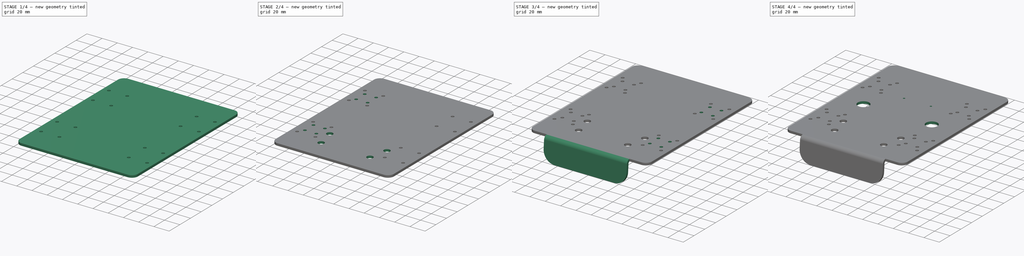
[diagram: build sequence overview — one tinted view per stage of 4, left to right]
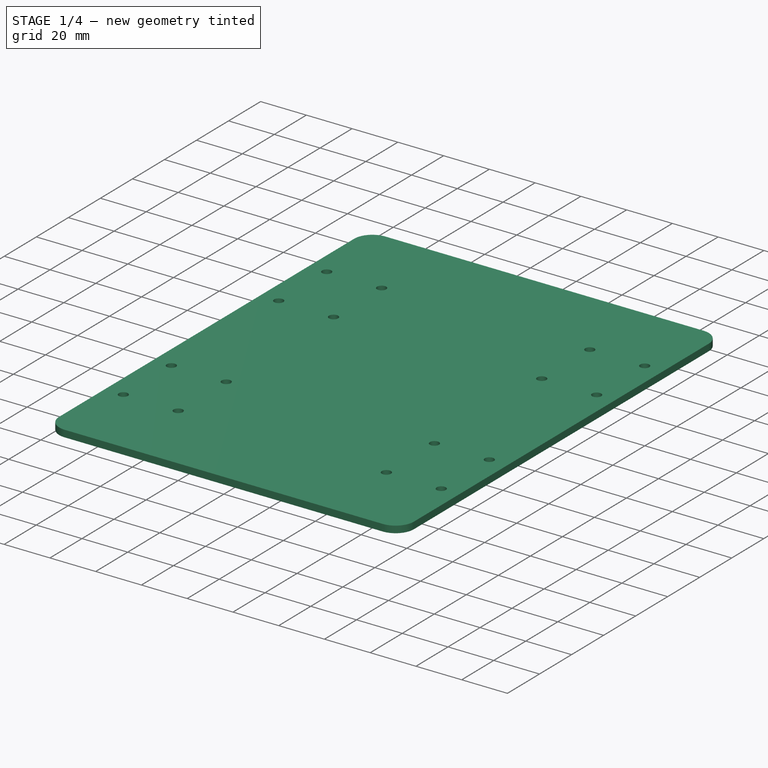
[diagram: stage 1 of 4 — iso view after this stage's code; geometry added in this stage tinted green]
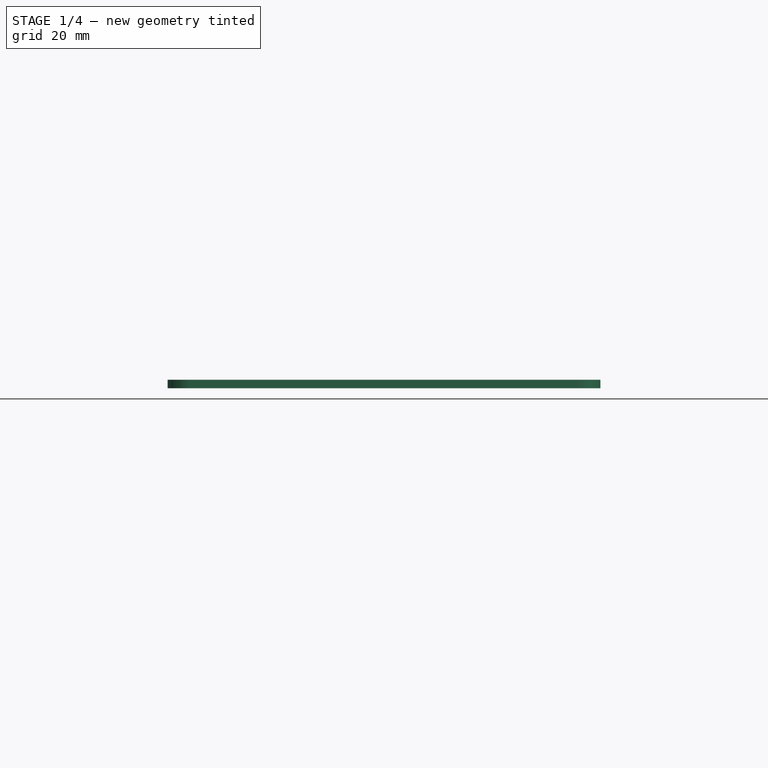
[diagram: stage 1 of 4 — front view after this stage's code; geometry added in this stage tinted green]
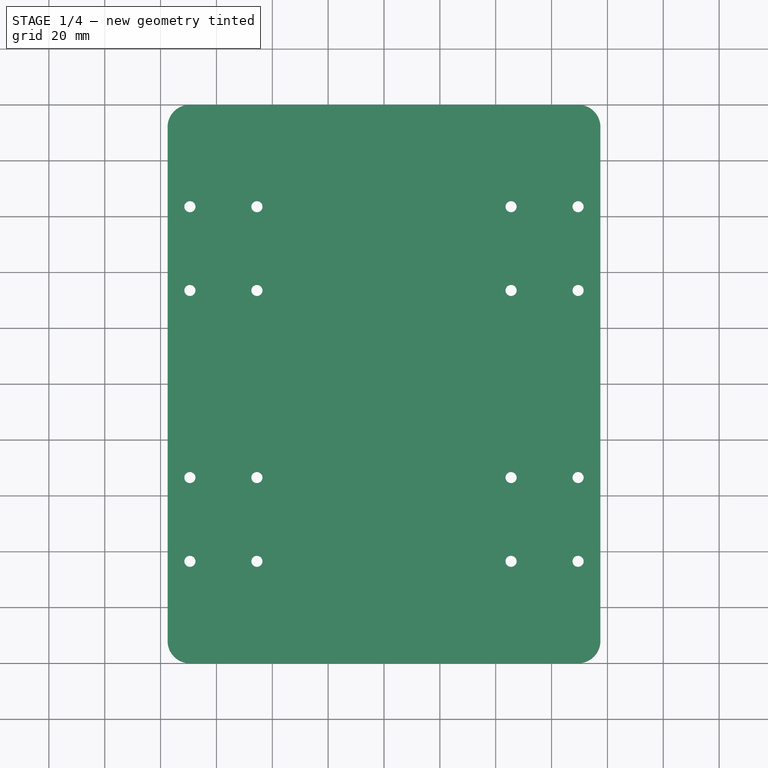
[diagram: stage 1 of 4 — top view after this stage's code; geometry added in this stage tinted green]
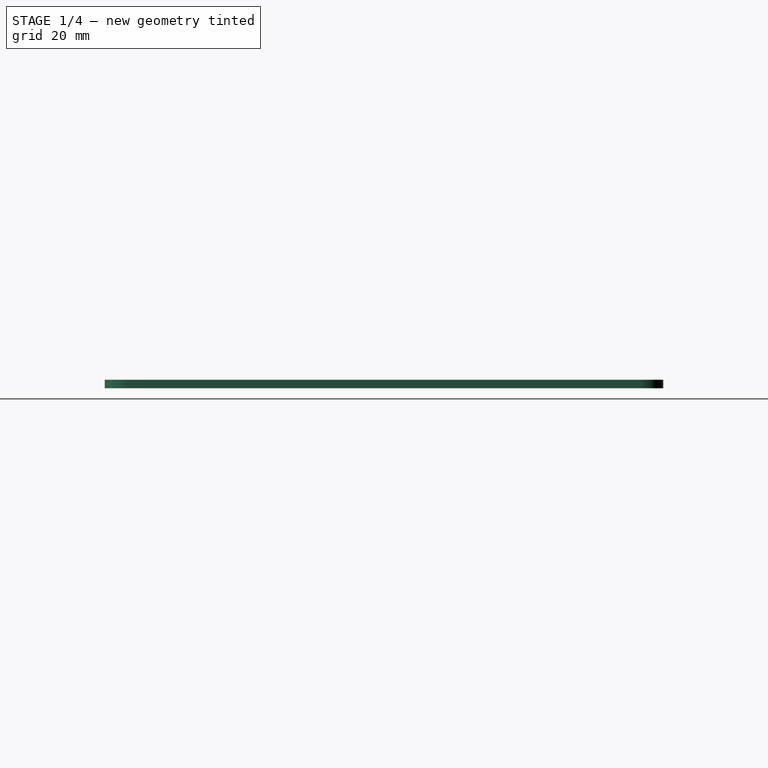
[diagram: stage 1 of 4 — right view after this stage's code; geometry added in this stage tinted green]
FCSTD DOCUMENT  (FreeCAD 0.21R33771 (Git))
Label: BigOleYellowChassisPlate
License: All rights reserved
LicenseURL: http://en.wikipedia.org/wiki/All_rights_reserved
objects: Sketcher::SketchObject×7, PartDesign::Pocket×5, Part::Feature×2, PartDesign::Pad×2, App::Part×1, Spreadsheet::Sheet×1, Part::FeaturePython×1, App::FeaturePython×1, App::AnnotationLabel×1, App::DocumentObjectGroup×1, PartDesign::Mirrored×1, PartDesign::ShapeBinder×1, PartDesign::Fillet×1, PartDesign::Body×1
note: 29 computed .brp shape members not serialized (recipe doc carries the construction recipe); baked Part::Feature solids carry a one-line shape summary decoded from their .brp

FEATURE [Part::Feature] Part__Feature088  label="ImportedChassis"
  Placement = pos=(0,0,0) rot=(1,0,0;1.5708rad)
  shape: bbox 154 x 200 x 3 mm, 158 faces (baked)
FEATURE [Part::Feature] Part__Feature089  label="ChassisFront"
  Placement = pos=(0,0,0) rot=(1,0,0;1.5708rad)
  shape: bbox 109 x 8 x 30.45 mm, 10 faces (baked)
FEATURE [App::Part] ChassisBody_v26  label="ChassisBody"
  Group = -> [Part__Feature088,Part__Feature089]
  Origin = -> Origin017
  Placement = pos=(6.4e-14,1,-2.49e-14) rot=(1,0,0;0rad)
FEATURE [Sketcher::SketchObject] Sketch032
  FullyConstrained = true
  MapMode = 5
  Support = -> [XY_Plane057]
  expr: Constraints[26] = <<ChassisPlateSheet>>.corner_radius
  expr: Constraints[5] = <<ChassisPlateSheet>>.width
  expr: Constraints[6] = <<ChassisPlateSheet>>.length
  sketch-geometry (12):
    g0: LineSegment StartX=-69.5 StartY=100 StartZ=0 EndX=69.5 EndY=100 EndZ=0
    g1: LineSegment StartX=77.5 StartY=92 StartZ=0 EndX=77.5 EndY=-92 EndZ=0
    g2: LineSegment StartX=69.5 StartY=-100 StartZ=0 EndX=-69.5 EndY=-100 EndZ=0
    g3: LineSegment StartX=-77.5 StartY=-92 StartZ=0 EndX=-77.5 EndY=92 EndZ=0
    g4: ArcOfCircle CenterX=-69.5 CenterY=92 CenterZ=0 NormalX=0 NormalY=0 NormalZ=1 AngleXU=0 Radius=8 StartAngle=1.5708 EndAngle=3.14159
    g5: GeomPoint X=-77.5 Y=100 Z=0
    g6: ArcOfCircle CenterX=69.5 CenterY=92 CenterZ=0 NormalX=0 NormalY=0 NormalZ=1 AngleXU=0 Radius=8 StartAngle=5.01e-14 EndAngle=1.5708
    g7: GeomPoint X=77.5 Y=100 Z=0
    g8: ArcOfCircle CenterX=69.5 CenterY=-92 CenterZ=0 NormalX=0 NormalY=0 NormalZ=1 AngleXU=0 Radius=8 StartAngle=4.71239 EndAngle=6.28319
    g9: GeomPoint X=77.5 Y=-100 Z=0
    g10: ArcOfCircle CenterX=-69.5 CenterY=-92 CenterZ=0 NormalX=0 NormalY=0 NormalZ=1 AngleXU=0 Radius=8 StartAngle=3.14159 EndAngle=4.71239
    g11: GeomPoint X=-77.5 Y=-100 Z=0
  constraints (27):
    c: Horizontal(g0)
    c: Horizontal(g2)
    c: Vertical(g1)
    c: Vertical(g3)
    c: Symmetric(g9,g5,g-1)
    c: DistanceX(g5,g7) = 155
    c: DistanceY(g9,g7) = 200
    c: PointOnObject(g5,g3)
    c: PointOnObject(g5,g0)
    c: Tangent(g3,g4) = 1.5708
    c: Tangent(g0,g4) = 1.5708
    c: PointOnObject(g7,g0)
    c: PointOnObject(g7,g1)
    c: Tangent(g0,g6) = 1.5708
    c: Tangent(g1,g6) = 1.5708
    c: PointOnObject(g9,g1)
    c: PointOnObject(g9,g2)
    c: Tangent(g1,g8) = 1.5708
    c: Tangent(g2,g8) = 1.5708
    c: PointOnObject(g11,g2)
    c: PointOnObject(g11,g3)
    c: Tangent(g2,g10) = 1.5708
    c: Tangent(g3,g10) = 1.5708
    c: Equal(g10,g8)
    c: Equal(g8,g6)
    c: Equal(g6,g4)
    c: Radius(g4) = 8
FEATURE [Spreadsheet::Sheet] Spreadsheet001  label="ChassisPlateSheet"
  cells = A1='width; B1(width)==155 mm; D1='front_bracket_height; E1(front_bracket_height)==30 mm; H1='Outer Holes; K1='Inner Holes; A2='length; B2(length)==200 mm; D2='front_bracket_width; E2(front_bracket_width)==108 mm; H2='outer_hole_to_edge; I2(outer_hole_to_edge)==8 mm; K2='inner_hole_to_edge; L2(inner_hole_to_edge)==13 mm; A3='thickness; B3(thickness)==3 mm; H3='outer_hole_diameter; I3(outer_hole_diameter)==4 mm; K3='inner_hole_diameter; L3(inner_hole_diameter)==4 mm; A4='corner_radius; B4(corner_radius)==8 mm; H4='outer_hole_from_rear; I4(outer_hole_from_rear)==36.5 mm; K4='inner_hole_from_rear; L4(inner_hole_from_rear)==44 mm; H5='outer_hole_from_front; I5(outer_hole_from_front)==36.5 mm; K5='inner_hole_from_front; L5(inner_hole_from_front)==44 mm; H6='outer_hole_dist_fb; I6(outer_hole_dist_fb)==30 mm; K6='inner_hole_dist_fb; L6(inner_hole_dist_fb)==16 mm; H7='outer_hole_dist_w; I7(outer_hole_dist_w)==24 mm; K7='inner_hole_dist_w; L7(inner_hole_dist_w)==15 mm; A9='Peg Holes; D9='Mid Side Holes; H9='Diamond Holes; A10='peg_hole_diameter; B10(peg_hole_diameter)==8 mm; D10='mid_side_hole_diameter; E10(mid_side_hole_diameter)==15 mm; H10='diamond_front_pair_dist; I10(diamond_front_pair_dist)==20.5 mm; A11='peg_hole_to_front; B11(peg_hole_to_front)==24 mm + 4 mm; D11='mid_side_hole_edge_tangent; E11(mid_side_hole_edge_tangent)==25.5 mm; H11='diamond_small_diam; I11(diamond_small_diam)==2.5 mm; A12='front_peg_hole_distance; B12(front_peg_hole_distance)==56 mm + 8 mm; D12='mid_side_hole_rear_tangent; E12(mid_side_hole_rear_tangent)==93 mm; H12='diamond_outer_pair_dist; I12(diamond_outer_pair_dist)==35 mm; A13='front_peg_hole_to_rear_holes; B13(front_peg_hole_to_rear_holes)==24 mm; H13='diamond_inner_pair_dist; I13(diamond_inner_pair_dist)==6.5 mm; A14='rear_peg_hole_distance; B14(rear_peg_hole_distance)==67 mm + 8 mm; H14='diamond_outer_to_rear; I14(diamond_outer_to_rear)==63.5 mm
FEATURE [PartDesign::Pad] Pad014  label="ChassisPlatePad"
  Direction = (0,0,1)
  Length = 3
  Length2 = 10
  Profile = -> Sketch032
  ReferenceAxis = -> Sketch032 [N_Axis]
  Type = 0
  expr: Length = <<ChassisPlateSheet>>.thickness
FEATURE [Sketcher::SketchObject] Sketch
  ExternalGeometry = -> [Pad014]
  FullyConstrained = true
  MapMode = 5
  Placement = pos=(0,0,3) rot=(0,0,1;0rad)
  Support = -> [Pad014]
  expr: Constraints[16] = <<ChassisPlateSheet>>.outer_hole_from_front
  expr: Constraints[17] = <<ChassisPlateSheet>>.outer_hole_dist_fb
  expr: Constraints[18] = <<ChassisPlateSheet>>.outer_hole_diameter
  expr: Constraints[19] = <<ChassisPlateSheet>>.outer_hole_dist_w
  expr: Constraints[20] = <<ChassisPlateSheet>>.outer_hole_to_edge
  expr: Constraints[21] = <<ChassisPlateSheet>>.outer_hole_from_rear
  expr: Constraints[22] = <<ChassisPlateSheet>>.outer_hole_dist_fb
  sketch-geometry (16):
    g0: Circle CenterX=-69.5 CenterY=63.5 CenterZ=0 NormalX=0 NormalY=0 NormalZ=1 AngleXU=0 Radius=2
    g1: Circle CenterX=-69.5 CenterY=33.5 CenterZ=0 NormalX=0 NormalY=0 NormalZ=1 AngleXU=0 Radius=2
    g2: Circle CenterX=-45.5 CenterY=63.5 CenterZ=0 NormalX=0 NormalY=0 NormalZ=1 AngleXU=0 Radius=2
    g3: Circle CenterX=-45.5 CenterY=33.5 CenterZ=0 NormalX=0 NormalY=0 NormalZ=1 AngleXU=0 Radius=2
    g4: Circle CenterX=-69.5 CenterY=-33.5 CenterZ=0 NormalX=0 NormalY=0 NormalZ=1 AngleXU=0 Radius=2
    g5: Circle CenterX=-45.5 CenterY=-33.5 CenterZ=0 NormalX=0 NormalY=0 NormalZ=1 AngleXU=0 Radius=2
    g6: Circle CenterX=-69.5 CenterY=-63.5 CenterZ=0 NormalX=0 NormalY=0 NormalZ=1 AngleXU=0 Radius=2
    g7: Circle CenterX=-45.5 CenterY=-63.5 CenterZ=0 NormalX=0 NormalY=0 NormalZ=1 AngleXU=0 Radius=2
    g8: Circle CenterX=69.5 CenterY=63.5 CenterZ=0 NormalX=0 NormalY=0 NormalZ=1 AngleXU=0 Radius=2
    g9: Circle CenterX=69.5 CenterY=33.5 CenterZ=0 NormalX=0 NormalY=0 NormalZ=1 AngleXU=0 Radius=2
    g10: Circle CenterX=45.5 CenterY=63.5 CenterZ=0 NormalX=0 NormalY=0 NormalZ=1 AngleXU=0 Radius=2
    g11: Circle CenterX=45.5 CenterY=33.5 CenterZ=0 NormalX=0 NormalY=0 NormalZ=1 AngleXU=0 Radius=2
    g12: Circle CenterX=69.5 CenterY=-33.5 CenterZ=0 NormalX=0 NormalY=0 NormalZ=1 AngleXU=0 Radius=2
    g13: Circle CenterX=45.5 CenterY=-33.5 CenterZ=0 NormalX=0 NormalY=0 NormalZ=1 AngleXU=0 Radius=2
    g14: Circle CenterX=69.5 CenterY=-63.5 CenterZ=0 NormalX=0 NormalY=0 NormalZ=1 AngleXU=0 Radius=2
    g15: Circle CenterX=45.5 CenterY=-63.5 CenterZ=0 NormalX=0 NormalY=0 NormalZ=1 AngleXU=0 Radius=2
  constraints (40):
    c: Equal(g2,g3)
    c: Equal(g3,g1)
    c: Equal(g1,g0)
    c: Equal(g0,g4)
    c: Equal(g4,g5)
    c: Equal(g5,g6)
    c: Equal(g6,g7)
    c: Vertical(g2,g3)
    c: Vertical(g5,g7)
    c: Vertical(g4,g6)
    c: Vertical(g6,g1)
    c: Vertical(g1,g0)
    c: Horizontal(g0,g2)
    c: Horizontal(g1,g3)
    c: Horizontal(g4,g5)
    c: Horizontal(g6,g7)
    c: DistanceY(g-6,g7) = 36.5
    c: DistanceY(g7,g5) = 30
    c: Diameter(g6) = 4
    c: DistanceX(g6,g7) = 24
    c: DistanceX(g-3,g6) = 8
    c: DistanceY(g0,g-4) = 36.5
    c: DistanceY(g1,g0) = 30
    c: Vertical(g3,g5)
    c: Equal(g10,g11)
    c: Equal(g11,g9)
    c: Equal(g9,g8)
    c: Equal(g8,g12)
    c: Equal(g12,g13)
    c: Equal(g13,g14)
    c: Equal(g14,g15)
    c: Diameter(g14) = 4
    c: Symmetric(g15,g7,g-2)
    c: Symmetric(g5,g13,g-2)
    c: Symmetric(g12,g4,g-2)
    c: Symmetric(g6,g14,g-2)
    c: Symmetric(g0,g8,g-2)
    c: Symmetric(g10,g2,g-2)
    c: Symmetric(g1,g9,g-2)
    c: Symmetric(g11,g3,g-2)
FEATURE [PartDesign::Pocket] Pocket  label="OuterHolesPocket"
  BaseFeature = -> Pad014
  Direction = (0,0,-1)
  Length = 5
  Length2 = 5
  Profile = -> Sketch
  ReferenceAxis = -> Sketch [N_Axis]
  Type = 1
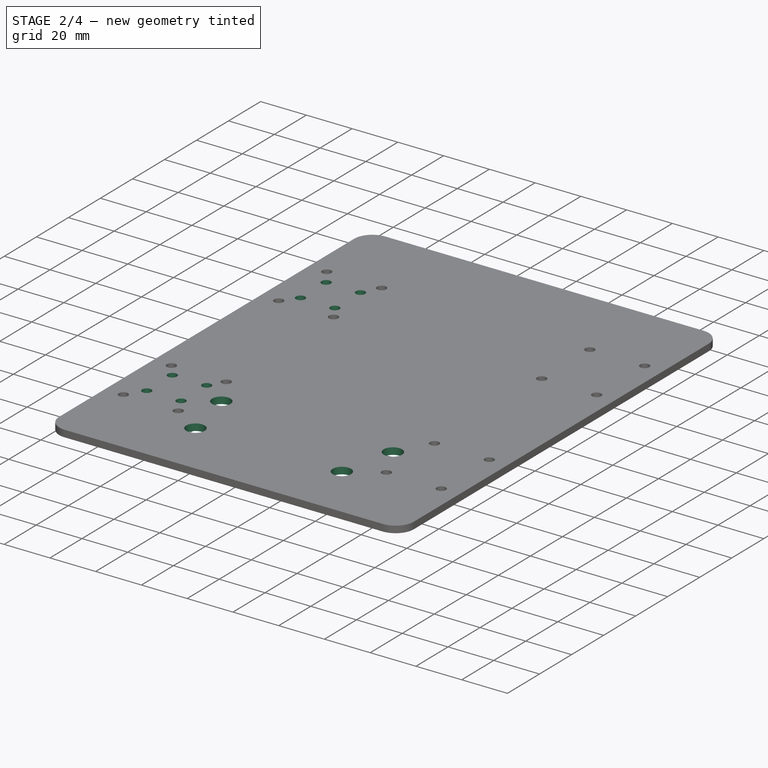
[diagram: stage 2 of 4 — iso view after this stage's code; geometry added in this stage tinted green]
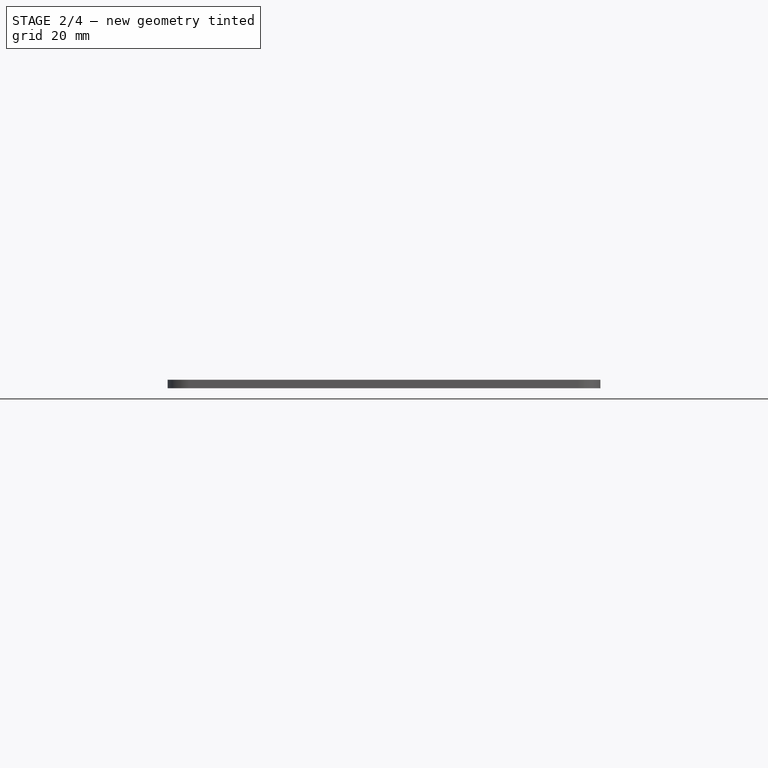
[diagram: stage 2 of 4 — front view after this stage's code; geometry added in this stage tinted green]
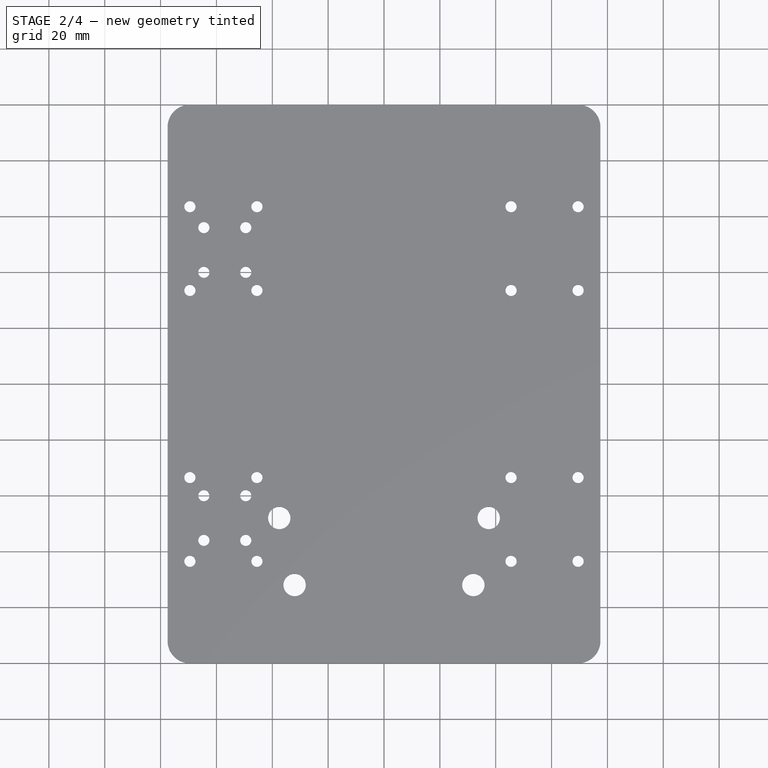
[diagram: stage 2 of 4 — top view after this stage's code; geometry added in this stage tinted green]
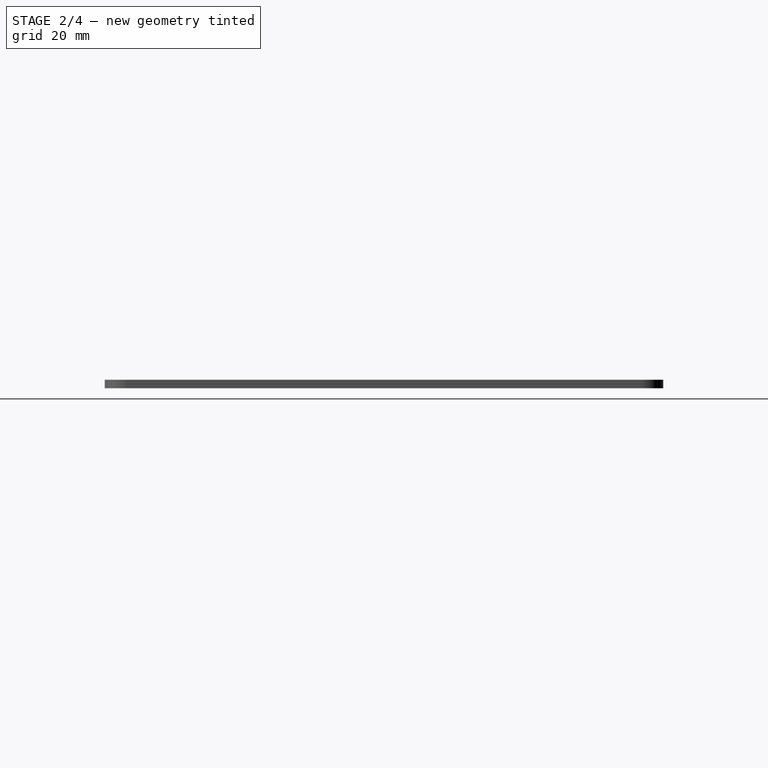
[diagram: stage 2 of 4 — right view after this stage's code; geometry added in this stage tinted green]
FEATURE [Part::FeaturePython] Point  label="Center"  # WARN: FeaturePython — macro-defined, semantics opaque (R4)
  Placement = pos=(114.5,53,3) rot=(0,0,1;0rad)
  X = 114.5
  Y = 53
  Z = 3
FEATURE [App::FeaturePython] Dimension  label="Radius"  # Draft dimension (typed FeaturePython)
  Diameter = false
  Dimline = (116.5,53,3)
  Direction = (0,0,0)
  Distance = 4
  End = (114.5,53,3)
  Normal = (0,0,1)
  Start = (118.5,53,3)
FEATURE [App::AnnotationLabel] RadiusLbl
  BasePosition = (116.5,53,3)
  LabelText = radi: 4.0 mm
  TextPosition = (0,0,0)
FEATURE [App::DocumentObjectGroup] Measurements
  Group = -> [Dimension,RadiusLbl]
FEATURE [Sketcher::SketchObject] Sketch033  label="PegHoleSketch"
  ExternalGeometry = -> [Pocket]
  FullyConstrained = true
  MapMode = 5
  Placement = pos=(0,0,3) rot=(0,0,1;0rad)
  Support = -> [Pocket]
  expr: Constraints[15] = <<ChassisPlateSheet>>.peg_hole_diameter
  expr: Constraints[16] = <<ChassisPlateSheet>>.rear_peg_hole_distance
  expr: Constraints[17] = Spreadsheet001.front_peg_hole_distance
  expr: Constraints[3] = <<ChassisPlateSheet>>.peg_hole_to_front
  expr: Constraints[7] = <<ChassisPlateSheet>>.front_peg_hole_to_rear_holes
  sketch-geometry (6):
    g0: LineSegment StartX=-77.5 StartY=-72 StartZ=0 EndX=77.5 EndY=-72 EndZ=0
    g1: LineSegment StartX=-77.5 StartY=-48 StartZ=0 EndX=77.5 EndY=-48 EndZ=0
    g2: Circle CenterX=-32 CenterY=-72 CenterZ=0 NormalX=0 NormalY=0 NormalZ=1 AngleXU=0 Radius=4
    g3: Circle CenterX=32 CenterY=-72 CenterZ=0 NormalX=0 NormalY=0 NormalZ=1 AngleXU=0 Radius=4
    g4: Circle CenterX=37.5 CenterY=-48 CenterZ=0 NormalX=0 NormalY=0 NormalZ=1 AngleXU=0 Radius=4
    g5: Circle CenterX=-37.5 CenterY=-48 CenterZ=0 NormalX=0 NormalY=0 NormalZ=1 AngleXU=0 Radius=4
  constraints (18):
    c: PointOnObject(g0,g-4)
    c: PointOnObject(g0,g-5)
    c: Horizontal(g0)
    c: DistanceY(g-3,g0) = 28
    c: PointOnObject(g1,g-4)
    c: Horizontal(g1)
    c: PointOnObject(g1,g-5)
    c: DistanceY(g0,g1) = 24
    c: PointOnObject(g2,g0)
    c: PointOnObject(g4,g1)
    c: Equal(g5,g4)
    c: Equal(g4,g3)
    c: Equal(g3,g2)
    c: Symmetric(g2,g3,g-2)
    c: Symmetric(g4,g5,g-2)
    c: Diameter(g4) = 8
    c: DistanceX(g5,g4) = 75
    c: DistanceX(g2,g3) = 64
FEATURE [PartDesign::Pocket] Pocket001  label="PegHoles"
  BaseFeature = -> Pocket
  Direction = (0,0,-1)
  Length = 5
  Length2 = 5
  Profile = -> Sketch033
  ReferenceAxis = -> Sketch033 [N_Axis]
  Type = 1
FEATURE [Sketcher::SketchObject] Sketch034  label="InnerHolesLeftSketch"
  ExternalGeometry = -> [Pocket001]
  FullyConstrained = true
  MapMode = 5
  Placement = pos=(0,0,3) rot=(0,0,1;0rad)
  Support = -> [Pocket001]
  expr: Constraints[17] = <<ChassisPlateSheet>>.inner_hole_diameter
  expr: Constraints[18] = <<ChassisPlateSheet>>.inner_hole_to_edge
  expr: Constraints[19] = <<ChassisPlateSheet>>.inner_hole_dist_w
  expr: Constraints[20] = <<ChassisPlateSheet>>.inner_hole_dist_fb
  expr: Constraints[21] = <<ChassisPlateSheet>>.inner_hole_from_front
  expr: Constraints[22] = <<ChassisPlateSheet>>.inner_hole_dist_fb
  expr: Constraints[23] = <<ChassisPlateSheet>>.inner_hole_from_rear
  sketch-geometry (8):
    g0: Circle CenterX=-64.5 CenterY=56 CenterZ=0 NormalX=0 NormalY=0 NormalZ=1 AngleXU=0 Radius=2
    g1: Circle CenterX=-49.5 CenterY=56 CenterZ=0 NormalX=0 NormalY=0 NormalZ=1 AngleXU=0 Radius=2
    g2: Circle CenterX=-64.5 CenterY=40 CenterZ=0 NormalX=0 NormalY=0 NormalZ=1 AngleXU=0 Radius=2
    g3: Circle CenterX=-49.5 CenterY=40 CenterZ=0 NormalX=0 NormalY=0 NormalZ=1 AngleXU=0 Radius=2
    g4: Circle CenterX=-64.5 CenterY=-40 CenterZ=0 NormalX=0 NormalY=0 NormalZ=1 AngleXU=0 Radius=2
    g5: Circle CenterX=-49.5 CenterY=-40 CenterZ=0 NormalX=0 NormalY=0 NormalZ=1 AngleXU=0 Radius=2
    g6: Circle CenterX=-64.5 CenterY=-56 CenterZ=0 NormalX=0 NormalY=0 NormalZ=1 AngleXU=0 Radius=2
    g7: Circle CenterX=-49.5 CenterY=-56 CenterZ=0 NormalX=0 NormalY=0 NormalZ=1 AngleXU=0 Radius=2
  constraints (24):
    c: Vertical(g4,g6)
    c: Vertical(g5,g7)
    c: Vertical(g3,g5)
    c: Vertical(g3,g1)
    c: Vertical(g0,g2)
    c: Vertical(g2,g4)
    c: Equal(g5,g4)
    c: Equal(g4,g6)
    c: Equal(g6,g7)
    c: Equal(g5,g3)
    c: Equal(g3,g2)
    c: Equal(g2,g0)
    c: Equal(g0,g1)
    c: Horizontal(g3,g2)
    c: Horizontal(g0,g1)
    c: Horizontal(g5,g4)
    c: Horizontal(g6,g7)
    c: Diameter(g7) = 4
    c: DistanceX(g-3,g4) = 13
    c: DistanceX(g4,g5) = 15
    c: DistanceY(g6,g4) = 16
    c: DistanceY(g-4,g6) = 44
    c: DistanceY(g2,g0) = 16
    c: DistanceY(g0,g-5) = 44
FEATURE [PartDesign::Pocket] Pocket002  label="InnerHolesLeft"
  BaseFeature = -> Pocket001
  Direction = (0,0,-1)
  Length = 5
  Length2 = 5
  Profile = -> Sketch034
  ReferenceAxis = -> Sketch034 [N_Axis]
  Type = 1
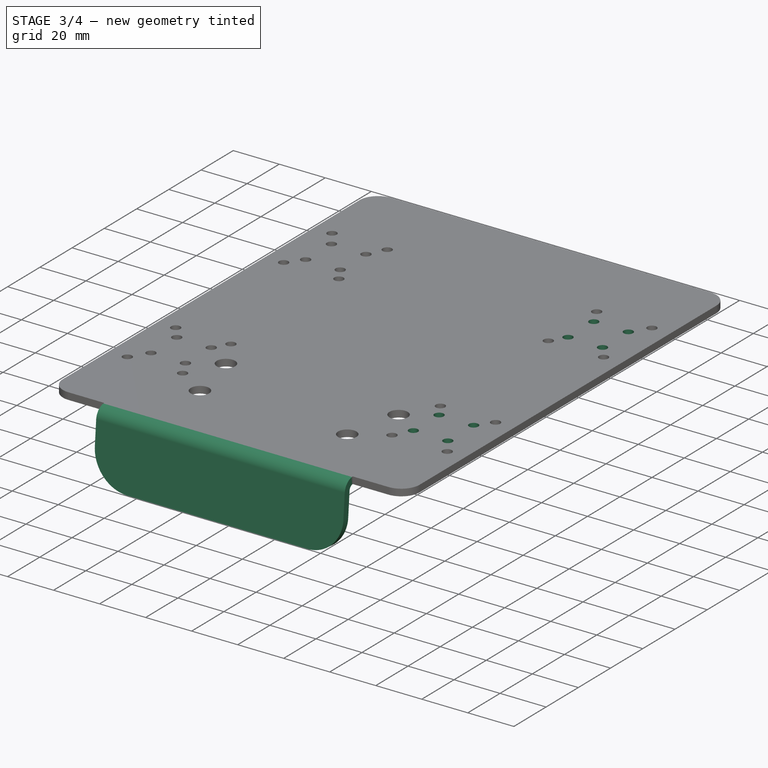
[diagram: stage 3 of 4 — iso view after this stage's code; geometry added in this stage tinted green]
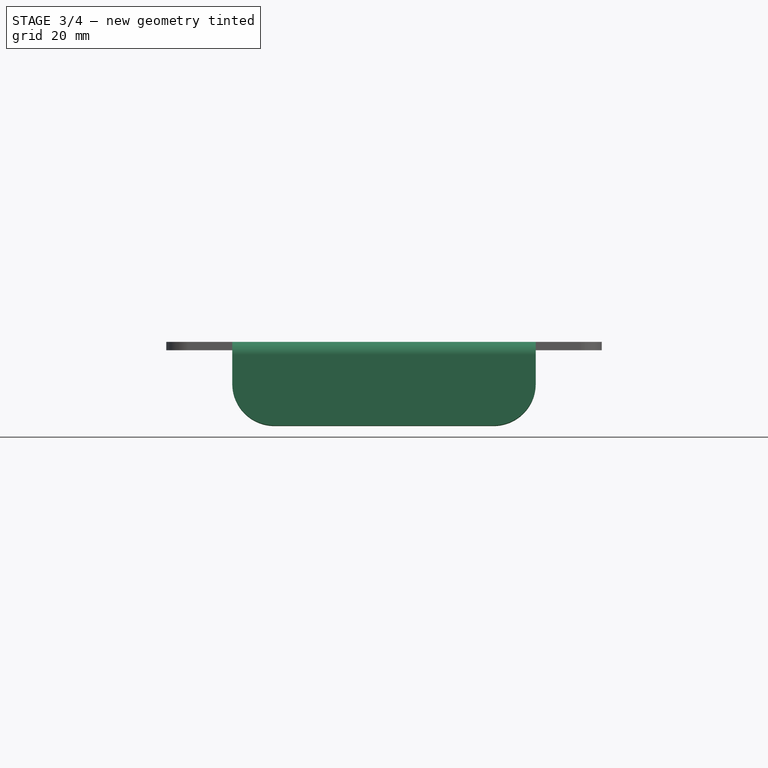
[diagram: stage 3 of 4 — front view after this stage's code; geometry added in this stage tinted green]
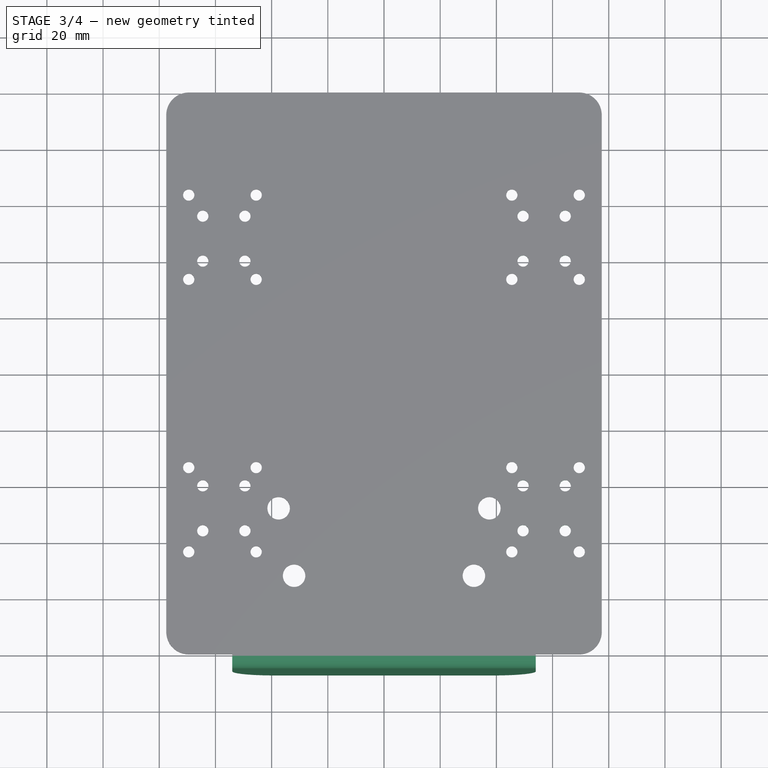
[diagram: stage 3 of 4 — top view after this stage's code; geometry added in this stage tinted green]
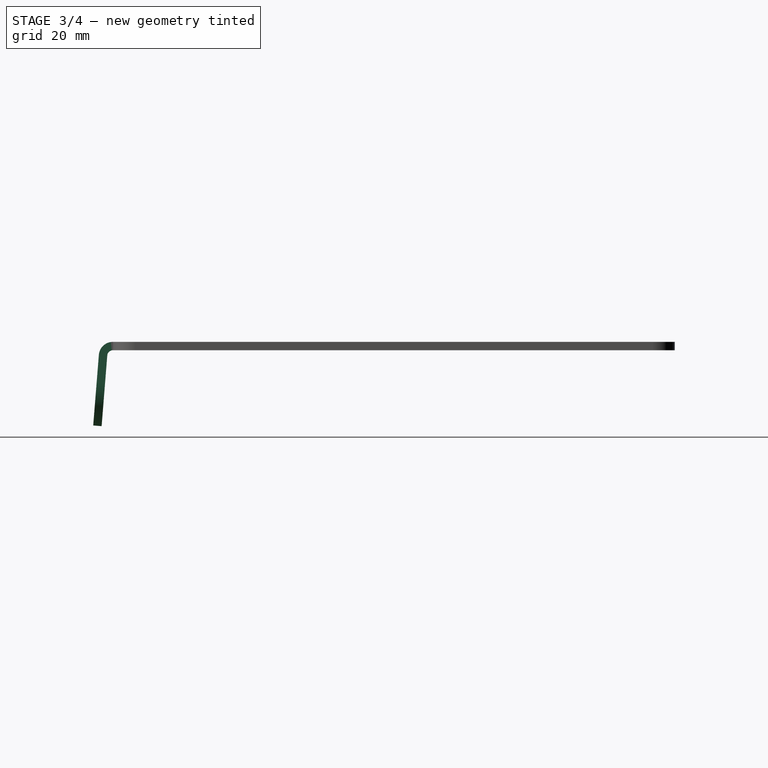
[diagram: stage 3 of 4 — right view after this stage's code; geometry added in this stage tinted green]
FEATURE [PartDesign::Mirrored] Mirrored  label="InnerHolesRight"
  BaseFeature = -> Pocket002
  MirrorPlane = -> Sketch034 [V_Axis]
  Originals = -> [Pocket002]
FEATURE [PartDesign::ShapeBinder] ShapeBinder  label="TopRightEdgeAndFrontRightEdge"
  Support = -> [Mirrored]
  TraceSupport = false
FEATURE [Sketcher::SketchObject] Sketch035  label="FrontBracketProfile"
  ExternalGeometry = -> [ShapeBinder]
  FullyConstrained = true
  MapMode = 5
  Placement = pos=(0,0,0) rot=(0.57735,0.57735,0.57735;2.0944rad)
  Support = -> [YZ_Plane057]
  expr: Constraints[11] = <<ChassisPlateSheet>>.front_bracket_height
  expr: Constraints[6] = <<ChassisPlateSheet>>.thickness
  sketch-geometry (6):
    g0: LineSegment StartX=-107 StartY=-26.7604 StartZ=0 EndX=-104.01 EndY=-27 EndZ=0
    g1: LineSegment StartX=-104.01 StartY=-27 StartZ=0 EndX=-101.994 EndY=-1.84028 EndZ=0
    g2: LineSegment StartX=-107 StartY=-26.7604 StartZ=0 EndX=-104.984 EndY=-1.60065 EndZ=0
    g3: ArcOfCircle CenterX=-100 CenterY=-2.00003 CenterZ=0 NormalX=0 NormalY=0 NormalZ=1 AngleXU=0 Radius=2.00003 StartAngle=1.5708 EndAngle=3.06164
    g4: ArcOfCircle CenterX=-100 CenterY=-2 CenterZ=0 NormalX=0 NormalY=0 NormalZ=1 AngleXU=0 Radius=5 StartAngle=1.57079 EndAngle=3.06164
    g5: LineSegment StartX=-100 StartY=-4.71e-14 StartZ=0 EndX=-100 EndY=3 EndZ=0
  constraints (16):
    c: Coincident(g1,g0)
    c: Coincident(g2,g0)
    c: Perpendicular(g2,g0)
    c: Perpendicular(g0,g1)
    c: Coincident(g3,g-3)
    c: Coincident(g4,g-3)
    c: Distance(g0) = 3
    c: Tangent(g3,g1) = 1.5708
    c: Tangent(g4,g2) = 1.5708
    c: Tangent(g3,g-1)
    c: Tangent(g4,g-4)
    c: DistanceY(g0,g4) = 30
    c: DistanceX(g0,g3) = 7
    c: Radius(g4) = 5
    c: Coincident(g5,g3)
    c: Coincident(g5,g4)
FEATURE [PartDesign::Pad] Pad  label="FronBracketPad"
  BaseFeature = -> Mirrored
  Direction = (1,-2e-16,3e-16)
  Length = 108
  Length2 = 10
  Midplane = true
  Profile = -> Sketch035
  ReferenceAxis = -> Sketch035 [N_Axis]
  Refine = true
  Type = 0
  expr: Length = <<ChassisPlateSheet>>.front_bracket_width
FEATURE [PartDesign::Fillet] Fillet  label="FrontBracketFillet"
  Base = -> Pad [Edge145,Edge148]
  BaseFeature = -> Pad
  Radius = 15
  Refine = true
  SupportTransform = false
  UseAllEdges = false
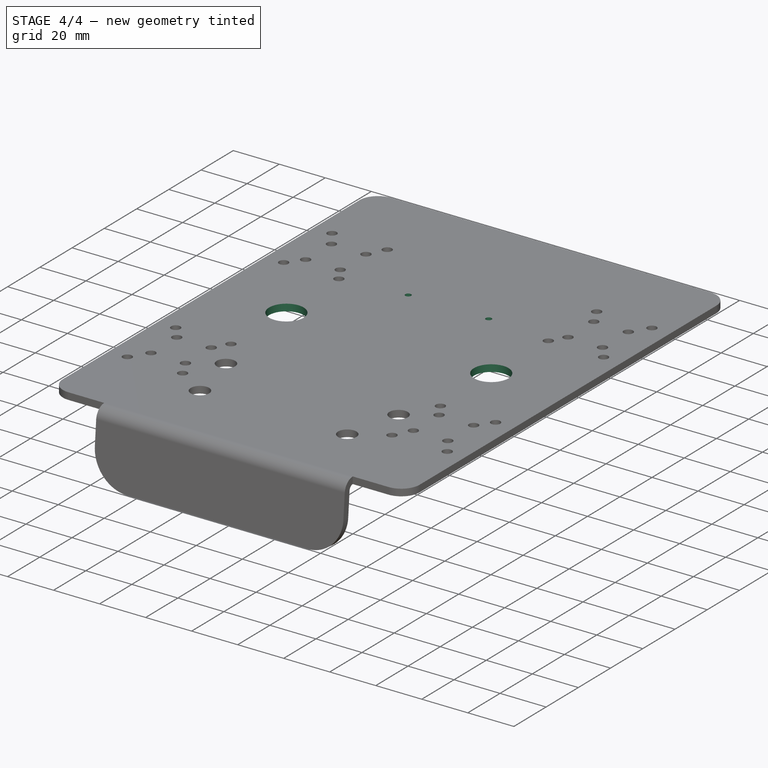
[diagram: stage 4 of 4 — iso view after this stage's code; geometry added in this stage tinted green]
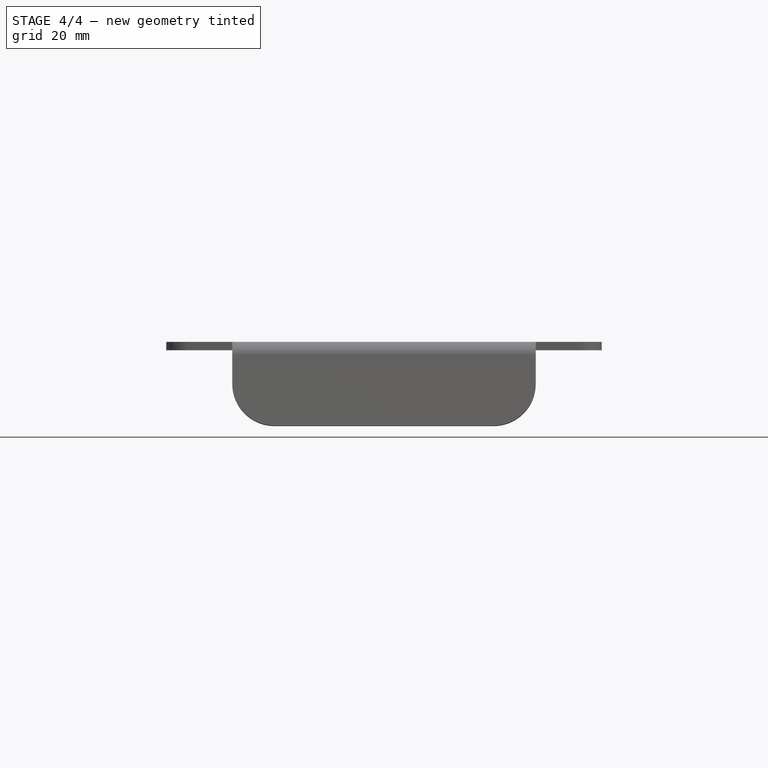
[diagram: stage 4 of 4 — front view after this stage's code; geometry added in this stage tinted green]
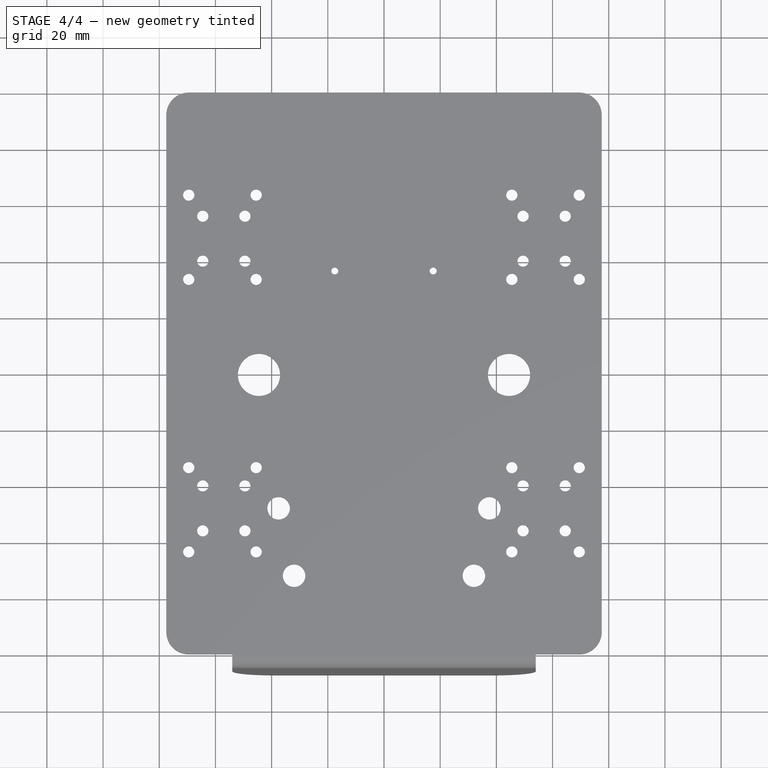
[diagram: stage 4 of 4 — top view after this stage's code; geometry added in this stage tinted green]
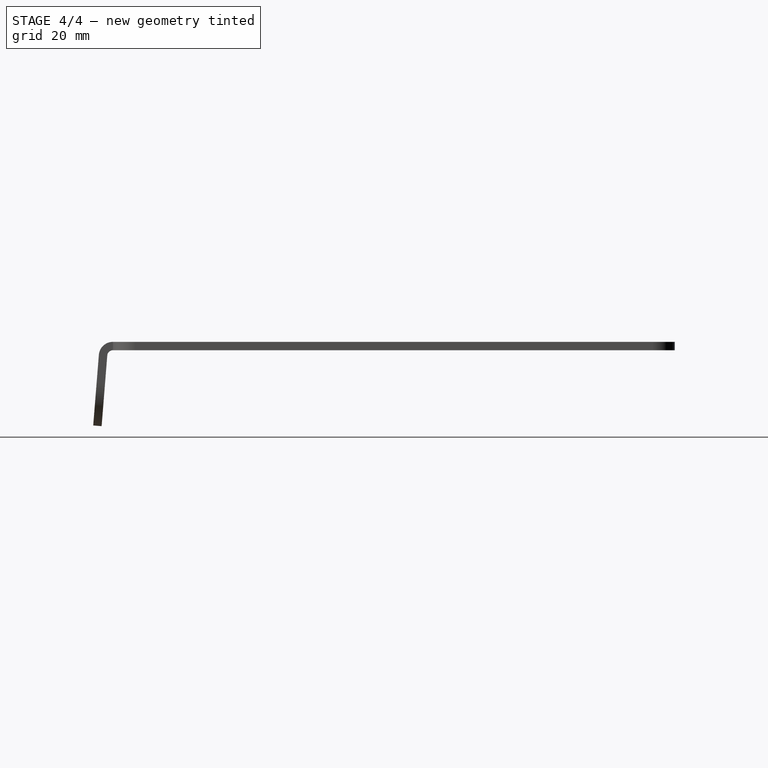
[diagram: stage 4 of 4 — right view after this stage's code; geometry added in this stage tinted green]
FEATURE [Sketcher::SketchObject] Sketch036  label="MidSideHoleSketch"
  ExternalGeometry = -> [Fillet]
  FullyConstrained = true
  MapMode = 5
  Placement = pos=(0,0,3) rot=(0,0,1;0rad)
  Support = -> [Fillet]
  expr: Constraints[10] = Spreadsheet001.mid_side_hole_edge_tangent
  expr: Constraints[12] = Spreadsheet001.mid_side_hole_rear_tangent
  expr: Constraints[2] = Spreadsheet001.mid_side_hole_diameter
  sketch-geometry (4):
    g0: Circle CenterX=-44.5 CenterY=-0.5 CenterZ=0 NormalX=0 NormalY=0 NormalZ=1 AngleXU=0 Radius=7.5
    g1: Circle CenterX=44.5 CenterY=-0.5 CenterZ=0 NormalX=0 NormalY=0 NormalZ=1 AngleXU=0 Radius=7.5
    g2: LineSegment StartX=-52 StartY=100 StartZ=0 EndX=-52 EndY=0 EndZ=0
    g3: LineSegment StartX=-69.5 StartY=7 StartZ=0 EndX=69.5 EndY=7 EndZ=0
  constraints (13):
    c: Symmetric(g1,g0,g-2)
    c: Equal(g0,g1)
    c: Diameter(g1) = 15
    c: PointOnObject(g2,g-3)
    c: PointOnObject(g2,g-1)
    c: Vertical(g2)
    c: Horizontal(g3)
    c: Tangent(g3,g0)
    c: Vertical(g3,g-3)
    c: Vertical(g3,g-3)
    c: DistanceX(g-4,g2) = 25.5
    c: Tangent(g0,g2)
    c: DistanceY(g3,g-3) = 93
FEATURE [PartDesign::Pocket] Pocket003  label="MidSideHoles"
  BaseFeature = -> Fillet
  Direction = (0,0,-1)
  Length = 5
  Length2 = 5
  Profile = -> Sketch036
  ReferenceAxis = -> Sketch036 [N_Axis]
  Type = 1
FEATURE [Sketcher::SketchObject] Sketch037  label="DiamondOuterHolesSketch"
  ExternalGeometry = -> [Pocket003]
  FullyConstrained = true
  MapMode = 5
  Placement = pos=(0,0,3) rot=(0,0,1;0rad)
  Support = -> [Pocket003]
  expr: Constraints[2] = Spreadsheet001.diamond_outer_to_rear
  expr: Constraints[3] = Spreadsheet001.diamond_outer_pair_dist
  expr: Constraints[4] = Spreadsheet001.diamond_small_diam
  sketch-geometry (2):
    g0: Circle CenterX=-17.5 CenterY=36.5 CenterZ=0 NormalX=0 NormalY=0 NormalZ=1 AngleXU=0 Radius=1.25
    g1: Circle CenterX=17.5 CenterY=36.5 CenterZ=0 NormalX=0 NormalY=0 NormalZ=1 AngleXU=0 Radius=1.25
  constraints (5):
    c: Equal(g1,g0)
    c: Symmetric(g0,g1,g-2)
    c: DistanceY(g0,g-3) = 63.5
    c: DistanceX(g0,g1) = 35
    c: Diameter(g1) = 2.5
FEATURE [PartDesign::Pocket] Pocket004  label="DiamondOuterHoles"
  BaseFeature = -> Pocket003
  Direction = (0,0,-1)
  Length = 5
  Length2 = 5
  Profile = -> Sketch037
  ReferenceAxis = -> Sketch037 [N_Axis]
  Type = 1
FEATURE [PartDesign::Body] Body011  label="ChassisRedraw"
  Group = -> [Sketch032,Pad014,Sketch,Pocket,Sketch033,Pocket001,Sketch034,Pocket002,Mirrored,ShapeBinder,Sketch035,Pad,Fillet,Sketch036,Pocket003,Sketch037,Pocket004]
  Origin = -> Origin057
  Tip = -> Pocket004
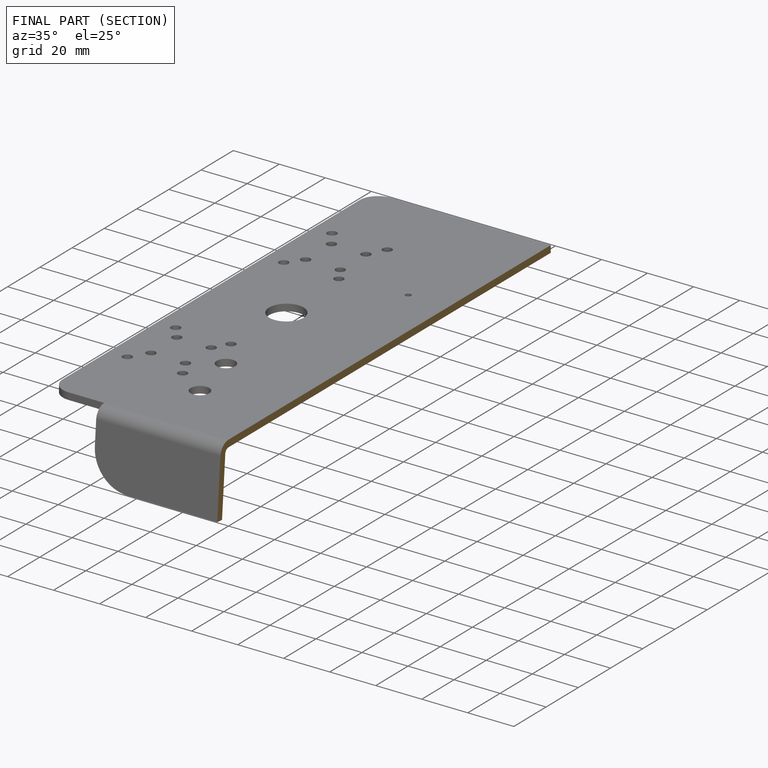
[diagram: finished part — half-section view (interior)]
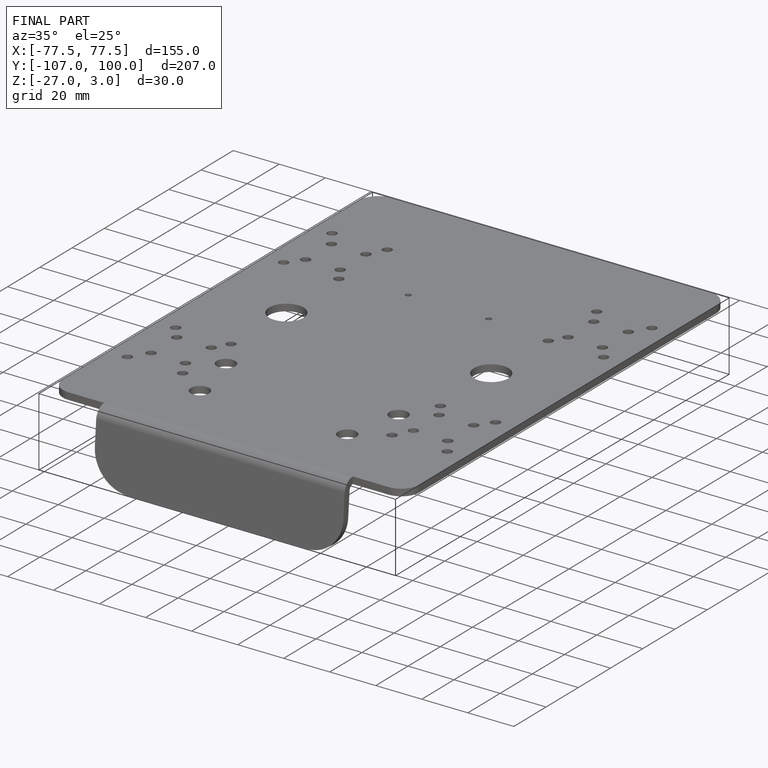
[diagram: finished part — iso view with bounding-box wireframe]
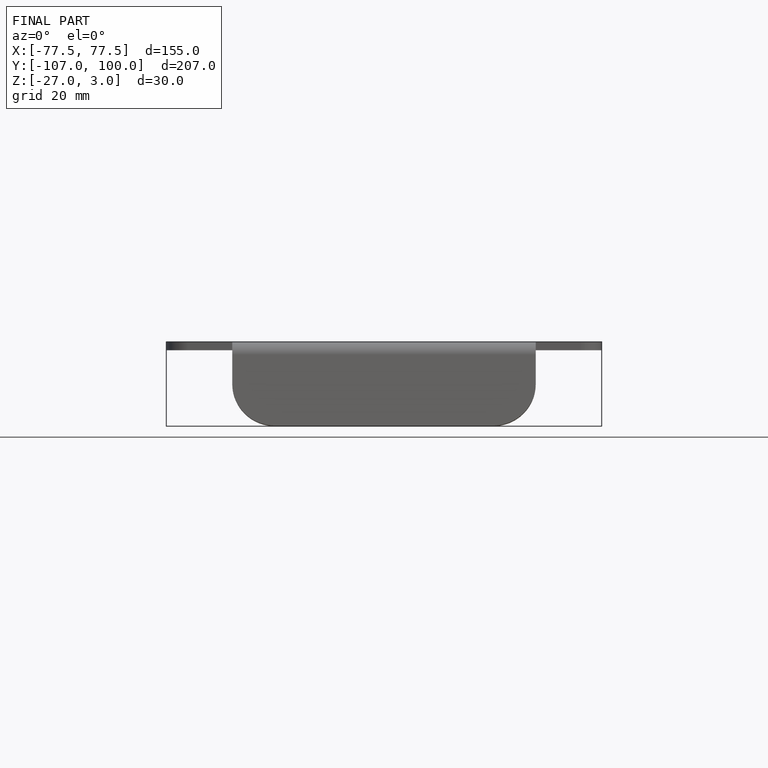
[diagram: finished part — front view with bounding-box wireframe]
